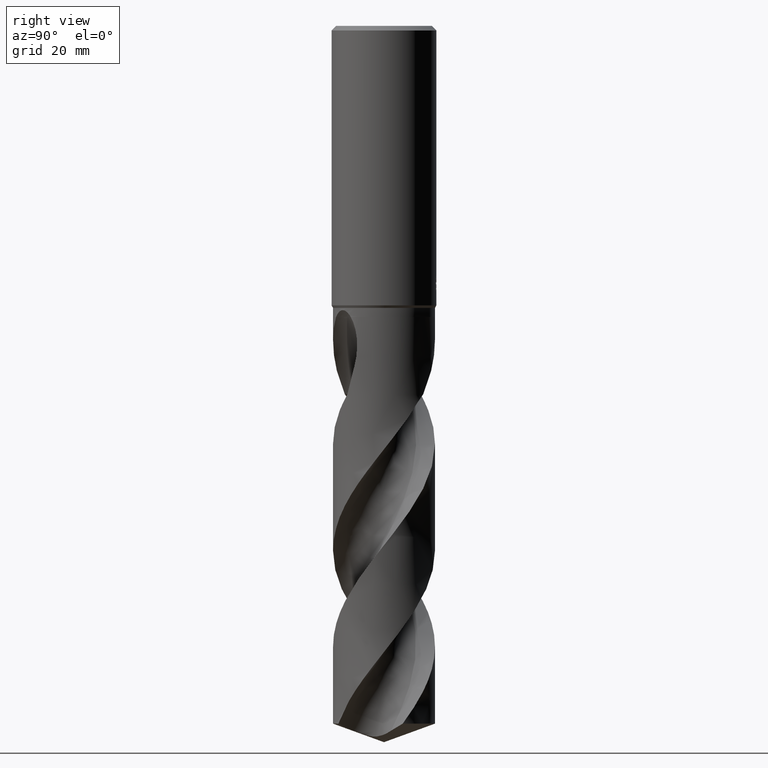
[diagram: clean part render]
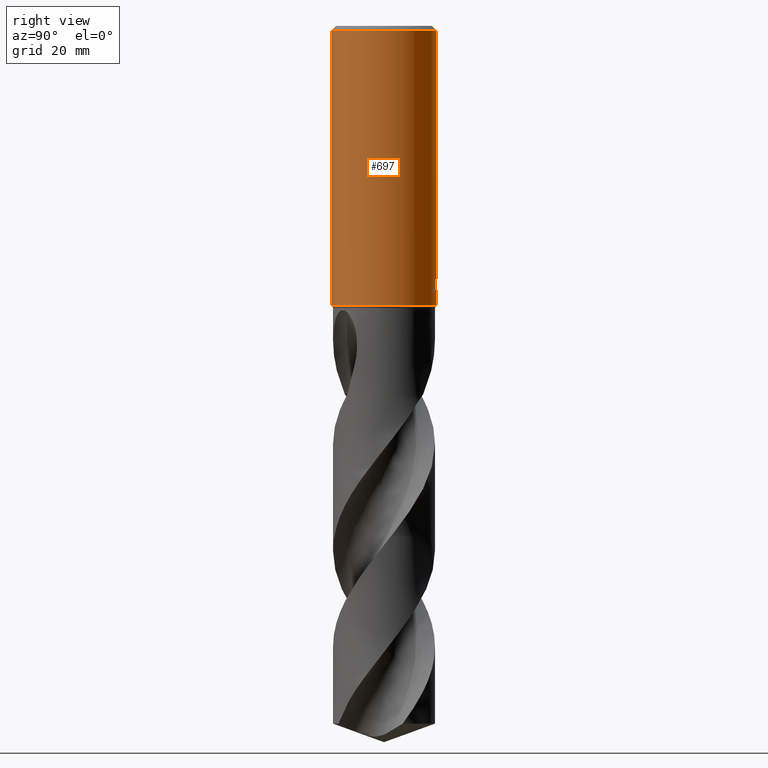
[diagram: same view with one face highlighted and labeled with its STEP entity id]
A machine part, right view. The second image highlights one B-rep face of the part: STEP entity #697.
In plain terms, the highlighted cylindrical surface (partial cylindrical patch) has radius 9 mm, axis along (-0, -0, 1).
Its self-contained STEP definition (entity closure, byte-faithful):
#279=EDGE_CURVE('',#465,#595,#764,.T.);
#293=EDGE_CURVE('',#601,#397,#781,.T.);
#309=EDGE_CURVE('',#401,#475,#800,.T.);
#323=EDGE_CURVE('',#333,#601,#815,.T.);
#325=EDGE_CURVE('',#397,#677,#817,.T.);
#333=VERTEX_POINT('',#826);
#397=VERTEX_POINT('',#897);
#401=VERTEX_POINT('',#902);
#405=EDGE_CURVE('',#333,#463,#906,.T.);
#463=VERTEX_POINT('',#969);
#465=VERTEX_POINT('',#971);
#475=VERTEX_POINT('',#983);
#497=EDGE_CURVE('',#677,#465,#1008,.T.);
#525=EDGE_CURVE('',#717,#475,#1037,.T.);
#539=VERTEX_POINT('',#1051);
#541=EDGE_CURVE('',#463,#717,#1053,.T.);
#565=EDGE_CURVE('',#595,#707,#1078,.T.);
#595=VERTEX_POINT('',#1111);
#601=VERTEX_POINT('',#1117);
#617=EDGE_CURVE('',#401,#539,#1136,.T.);
#677=VERTEX_POINT('',#1199);
#693=EDGE_CURVE('',#707,#539,#1218,.T.);
#697=ADVANCED_FACE('',(#1222),#1223,.T.);
#707=VERTEX_POINT('',#1233);
#717=VERTEX_POINT('',#1243);
#764=LINE('',#1286,#1287);
#781=ELLIPSE('',#1321,27.431951160328,9.0);
#800=CIRCLE('',#1406,9.0);
#815=B_SPLINE_CURVE_WITH_KNOTS('',3,(#1446,#1447,#1448,#1449,#1450,#1451,#1452,#1453,#1454,#1455,#1456,#1457,#1458,#1459,#1460,#1461),.UNSPECIFIED.,.F.,.F.,(4,2,2,2,2,2,2,4),(5.84212605398706,6.14961712011921,6.45715936065203,6.76470160118484,7.07224384171766,7.37978608225048,7.68719068283064,7.9945952834108),.UNSPECIFIED.);
#817=LINE('',#1464,#1465);
#826=CARTESIAN_POINT('',(8.69674988129566E-017,9.0,-46.0310253601033));
#897=CARTESIAN_POINT('',(0.873560781758957,8.95750476196204,-44.3198931596091));
#902=CARTESIAN_POINT('',(0.0,9.0,-0.799999999999997));
#906=LINE('',#2059,#2060);
#969=CARTESIAN_POINT('',(0.0,9.0,-48.0));
#971=CARTESIAN_POINT('',(1.33721006514658,8.90010501295747,-45.2901657003257));
#983=CARTESIAN_POINT('',(1.10214571844014E-015,-9.0,-0.799999999999997));
#1008=B_SPLINE_CURVE_WITH_KNOTS('',3,(#2400,#2401,#2402,#2403,#2404,#2405,#2406,#2407,#2408,#2409),.UNSPECIFIED.,.F.,.F.,(4,2,2,2,4),(7.99459461394743,8.30199918826053,8.60940376257363,8.91687904338866,9.22435432420369),.UNSPECIFIED.);
#1037=LINE('',#2547,#2548);
#1051=CARTESIAN_POINT('',(-3.96293483452168E-015,9.0,-44.0232688117743));
#1053=CIRCLE('',#2593,9.0);
#1078=B_SPLINE_CURVE_WITH_KNOTS('',3,(#2795,#2796,#2797,#2798,#2799,#2800,#2801,#2802,#2803,#2804),.UNSPECIFIED.,.F.,.F.,(4,2,2,2,4),(0.61495058281604,0.92242587422406,1.22990116563208,1.53730575044376,1.84471033525544),.UNSPECIFIED.);
#1111=CARTESIAN_POINT('',(1.33721006514658,8.90010501295747,-43.5150484364821));
#1117=CARTESIAN_POINT('',(0.29010312703583,8.99532323908841,-45.9998328990228));
#1136=LINE('',#3747,#3748);
#1199=CARTESIAN_POINT('',(0.873560781758956,8.95750476196204,-45.7587351791531));
#1218=B_SPLINE_CURVE_WITH_KNOTS('',3,(#5241,#5242,#5243,#5244,#5245,#5246,#5247,#5248,#5249,#5250,#5251,#5252,#5253,#5254,#5255,#5256,#5257,#5258,#5259,#5260,#5261,#5262,#5263,#5264,#5265,#5266,#5267),.UNSPECIFIED.,.F.,.F.,(4,2,3,2,2,2,2,2,2,2,2,2,4),(-0.541854963380013,-0.270927481690006,0.0,0.270927481690006,0.541854963380013,0.812958943580423,1.08406292378083,1.35487393624635,1.62568494871187,1.89658247681333,2.1674800049148,2.43837753301627,2.70927506111774),.UNSPECIFIED.);
#1222=FACE_OUTER_BOUND('',#5273,.T.);
#1223=CYLINDRICAL_SURFACE('',#5274,9.0);
#1233=CARTESIAN_POINT('',(0.799431726384364,8.96442462820956,-43.000000276873));
#1243=CARTESIAN_POINT('',(1.10214571844014E-015,-9.0,-48.0));
#1286=CARTESIAN_POINT('',(1.33721006514658,8.90010501295747,-44.4026070684039));
#1287=VECTOR('',#5456,1.0);
#1321=AXIS2_PLACEMENT_3D('',#5509,#5510,#5511);
#1406=AXIS2_PLACEMENT_3D('',#5541,#5542,#5543);
#1446=CARTESIAN_POINT('',(-1.37972167599854,8.89361389406915,-45.3116598497038));
#1447=CARTESIAN_POINT('',(-1.31997654876768,8.90288252749667,-45.4004745075963));
#1448=CARTESIAN_POINT('',(-1.25222527016166,8.91275656771046,-45.4820158876704));
#1449=CARTESIAN_POINT('',(-1.10789856600508,8.93184529050157,-45.6263591423228));
#1450=CARTESIAN_POINT('',(-1.02635161633353,8.94173240167489,-45.6941286367988));
#1451=CARTESIAN_POINT('',(-0.848706654054937,8.96033888861573,-45.8136513633258));
#1452=CARTESIAN_POINT('',(-0.752612156295056,8.96904039878896,-45.8654125998122));
#1453=CARTESIAN_POINT('',(-0.552036819579822,8.98361653687793,-45.948602883649));
#1454=CARTESIAN_POINT('',(-0.44739213308708,8.98949065583308,-45.9800979655266));
#1455=CARTESIAN_POINT('',(-0.236812635405349,8.99750086122647,-46.0214375430714));
#1456=CARTESIAN_POINT('',(-0.130875740487602,8.99963225233045,-46.0312723335086));
#1457=CARTESIAN_POINT('',(0.0741055220392617,9.00027822368032,-46.0312723335086));
#1458=CARTESIAN_POINT('',(0.180008098918982,8.99881598924858,-46.0214461889762));
#1459=CARTESIAN_POINT('',(0.390540563619322,8.99213935569284,-45.9801300336401));
#1460=CARTESIAN_POINT('',(0.495172471718919,8.98692967010796,-45.9486495564687));
#1461=CARTESIAN_POINT('',(0.595454366750798,8.9802802905654,-45.9070681979483));
#1464=CARTESIAN_POINT('',(0.873560781758957,8.95750476196204,-45.0393141693811));
#1465=VECTOR('',#5565,1.0);
#2059=CARTESIAN_POINT('',(-1.10214571844014E-015,9.0,-24.4));
#2060=VECTOR('',#5687,1.0);
#2400=CARTESIAN_POINT('',(0.595454094999917,8.98028030858435,-45.9070677629397));
#2401=CARTESIAN_POINT('',(0.695735981650757,8.97363093264547,-45.8654864079457));
#2402=CARTESIAN_POINT('',(0.791832006555535,8.96554340250058,-45.8137379240411));
#2403=CARTESIAN_POINT('',(0.969485058526871,8.94807605857567,-45.694237629396));
#2404=CARTESIAN_POINT('',(1.05103850230384,8.9387140975714,-45.626477882907));
#2405=CARTESIAN_POINT('',(1.1954051193828,8.92055495395653,-45.4821272432096));
#2406=CARTESIAN_POINT('',(1.26318284122471,8.91111776326084,-45.4005662737774));
#2407=CARTESIAN_POINT('',(1.38271191486499,8.89335473495424,-45.2229001940476));
#2408=CARTESIAN_POINT('',(1.4344713688851,8.8850475237006,-45.1267986730503));
#2409=CARTESIAN_POINT('',(1.47606242903324,8.87813266997044,-45.0265094572918));
#2547=CARTESIAN_POINT('',(1.10214571844014E-015,-9.0,-24.4));
#2548=VECTOR('',#5820,1.0);
#2593=AXIS2_PLACEMENT_3D('',#5824,#5825,#5826);
#2795=CARTESIAN_POINT('',(1.47606243711222,8.87813266862725,-43.7787046936406));
#2796=CARTESIAN_POINT('',(1.43447137552849,8.88504752263498,-43.6784154744322));
#2797=CARTESIAN_POINT('',(1.38271191972217,8.89335473421325,-43.5823139501298));
#2798=CARTESIAN_POINT('',(1.26318284195553,8.91111776317141,-43.4046478642899));
#2799=CARTESIAN_POINT('',(1.19540511777314,8.92055495419272,-43.3230868920528));
#2800=CARTESIAN_POINT('',(1.05103849572569,8.93871409836512,-43.1787362474121));
#2801=CARTESIAN_POINT('',(0.969485049153635,8.94807605962161,-43.1109764986104));
#2802=CARTESIAN_POINT('',(0.791831991093473,8.96554340389651,-42.9914761998859));
#2803=CARTESIAN_POINT('',(0.695735962895035,8.973630934138,-42.9397277142143));
#2804=CARTESIAN_POINT('',(0.595454072808516,8.98028031005579,-42.8981463578012));
#3747=CARTESIAN_POINT('',(-1.10214571844014E-015,9.0,-24.4));
#3748=VECTOR('',#5898,1.0);
#5241=CARTESIAN_POINT('',(0.664932075041688,8.97540335225001,-42.8134055156165));
#5242=CARTESIAN_POINT('',(0.728692270346937,8.97067975406668,-42.8771869360812));
#5243=CARTESIAN_POINT('',(0.783987727658247,8.96586414078747,-42.9579708136456));
#5244=CARTESIAN_POINT('',(0.857343604339849,8.9591471969663,-43.135041642855));
#5245=CARTESIAN_POINT('',(0.875400981188567,8.957325109771,-43.2313328520234));
#5246=CARTESIAN_POINT('',(0.875400981188567,8.957325109771,-43.3216420125868));
#5247=CARTESIAN_POINT('',(0.875400981188567,8.957325109771,-43.4119511731501));
#5248=CARTESIAN_POINT('',(0.857343604339849,8.9591471969663,-43.5082423823186));
#5249=CARTESIAN_POINT('',(0.783987727658247,8.96586414078747,-43.6853132115279));
#5250=CARTESIAN_POINT('',(0.728692270346938,8.97067975406668,-43.7660970890924));
#5251=CARTESIAN_POINT('',(0.601130342497664,8.98013002767025,-43.8937014810878));
#5252=CARTESIAN_POINT('',(0.520325165375597,8.98538384805082,-43.9490345783732));
#5253=CARTESIAN_POINT('',(0.343202811107031,8.99389087129846,-44.0224436215851));
#5254=CARTESIAN_POINT('',(0.246880716317626,8.99706709356675,-44.0405166027747));
#5255=CARTESIAN_POINT('',(0.0662697068249511,9.00020872312346,-44.0405166027747));
#5256=CARTESIAN_POINT('',(-0.0300073000340085,9.00038564871037,-44.0224785355421));
#5257=CARTESIAN_POINT('',(-0.207105044312616,8.99805255398262,-43.9491281309434));
#5258=CARTESIAN_POINT('',(-0.287927260934903,8.99561983652438,-43.8938169265412));
#5259=CARTESIAN_POINT('',(-0.415574000165431,8.99062729777371,-43.7661974384748));
#5260=CARTESIAN_POINT('',(-0.470907536906384,8.98774703849931,-43.6853689338355));
#5261=CARTESIAN_POINT('',(-0.544295304958349,8.98360135804205,-43.5082419972217));
#5262=CARTESIAN_POINT('',(-0.562348199187247,8.98241418010052,-43.4119411886206));
#5263=CARTESIAN_POINT('',(-0.562348199187247,8.98241418010052,-43.231342836553));
#5264=CARTESIAN_POINT('',(-0.544295304958349,8.98360135804205,-43.1350420279518));
#5265=CARTESIAN_POINT('',(-0.470907536906384,8.98774703849931,-42.957915091338));
#5266=CARTESIAN_POINT('',(-0.415574000165432,8.99062729777371,-42.8770865866988));
#5267=CARTESIAN_POINT('',(-0.351740437394629,8.9931239658253,-42.8132666516862));
#5273=EDGE_LOOP('',(#5984,#5985,#5986,#5987,#5988,#5989,#5990,#5991,#5992,#5993,#5994,#5995));
#5274=AXIS2_PLACEMENT_3D('',#5996,#5997,#5998);
#5456=DIRECTION('',(-0.0,-0.0,1.0));
#5509=CARTESIAN_POINT('',(0.0,0.0,-46.8351219173269));
#5510=DIRECTION('',(0.944648353914092,0.0,-0.328084573619969));
#5511=DIRECTION('',(0.328084573619968,-0.0,0.944648353914092));
#5541=CARTESIAN_POINT('',(0.0,0.0,-0.799999999999997));
#5542=DIRECTION('',(0.0,0.0,-1.0));
#5543=DIRECTION('',(0.0,1.0,0.0));
#5565=DIRECTION('',(0.0,0.0,-1.0));
#5687=DIRECTION('',(0.0,0.0,-1.0));
#5820=DIRECTION('',(-0.0,-0.0,1.0));
#5824=CARTESIAN_POINT('',(0.0,0.0,-48.0));
#5825=DIRECTION('',(0.0,0.0,-1.0));
#5826=DIRECTION('',(0.0,1.0,0.0));
#5898=DIRECTION('',(0.0,0.0,-1.0));
#5984=ORIENTED_EDGE('',*,*,#617,.F.);
#5985=ORIENTED_EDGE('',*,*,#309,.T.);
#5986=ORIENTED_EDGE('',*,*,#525,.F.);
#5987=ORIENTED_EDGE('',*,*,#541,.F.);
#5988=ORIENTED_EDGE('',*,*,#405,.F.);
#5989=ORIENTED_EDGE('',*,*,#323,.T.);
#5990=ORIENTED_EDGE('',*,*,#293,.T.);
#5991=ORIENTED_EDGE('',*,*,#325,.T.);
#5992=ORIENTED_EDGE('',*,*,#497,.T.);
#5993=ORIENTED_EDGE('',*,*,#279,.T.);
#5994=ORIENTED_EDGE('',*,*,#565,.T.);
#5995=ORIENTED_EDGE('',*,*,#693,.T.);
#5996=CARTESIAN_POINT('',(0.0,0.0,-24.4));
#5997=DIRECTION('',(-0.0,-0.0,1.0));
#5998=DIRECTION('',(0.0,1.0,0.0));